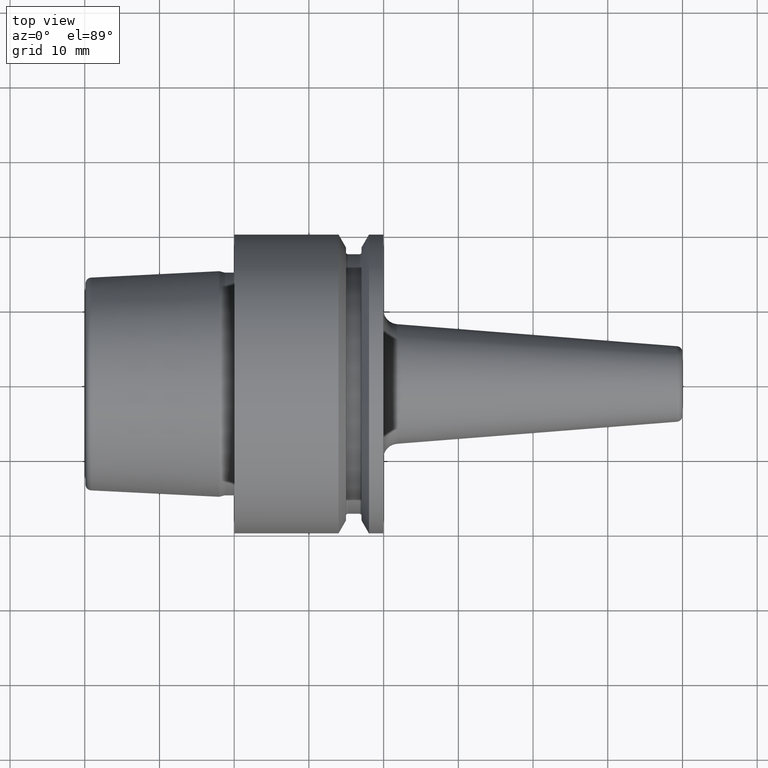
[diagram: clean part render]
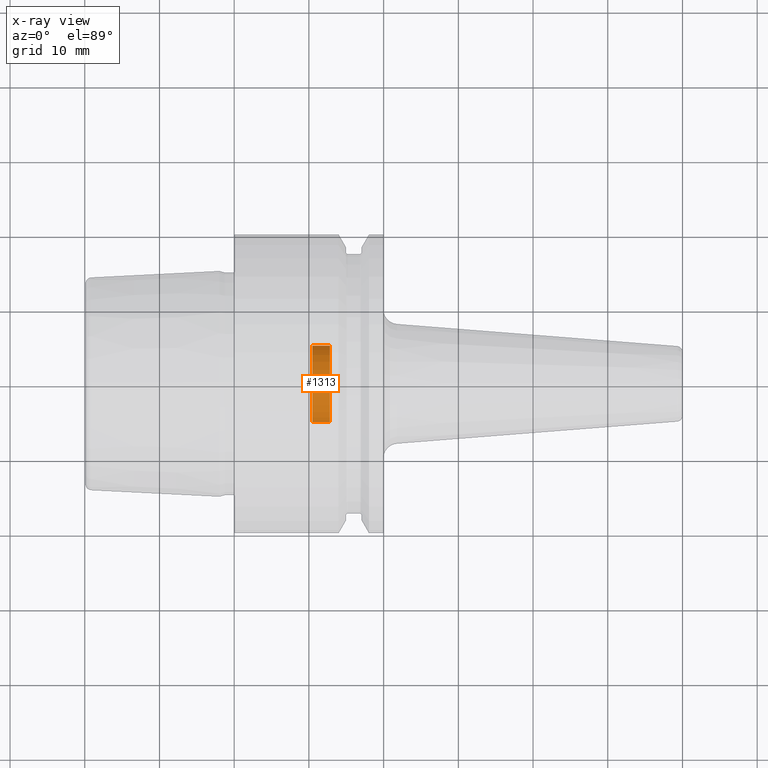
[diagram: x-ray — body ghosted, one internal face saturated and labeled with its STEP entity id]
A machine part, top view, then the same camera in x-ray: the body is ghosted and one INTERNAL B-rep face — a face not visible from any outside direction — is saturated and labeled: STEP entity #1313.
In plain terms, the highlighted cylindrical surface (partial cylindrical patch) has radius 5.1 mm, axis along (-1, 0, 0).
Its self-contained STEP definition (entity closure, byte-faithful):
#264=CARTESIAN_POINT('',(1.04625E1,0.E0,0.E0));
#265=DIRECTION('',(-1.E0,0.E0,0.E0));
#266=DIRECTION('',(0.E0,-1.E0,0.E0));
#267=AXIS2_PLACEMENT_3D('',#264,#265,#266);
#282=DIRECTION('',(-1.E0,0.E0,0.E0));
#283=VECTOR('',#282,2.3375E0);
#284=CARTESIAN_POINT('',(1.28E1,5.1E0,0.E0));
#285=LINE('',#284,#283);
#286=DIRECTION('',(-1.E0,0.E0,0.E0));
#287=VECTOR('',#286,2.3375E0);
#288=CARTESIAN_POINT('',(1.28E1,-5.1E0,0.E0));
#289=LINE('',#288,#287);
#300=CARTESIAN_POINT('',(1.28E1,0.E0,0.E0));
#301=DIRECTION('',(-1.E0,0.E0,0.E0));
#302=DIRECTION('',(0.E0,-1.E0,0.E0));
#303=AXIS2_PLACEMENT_3D('',#300,#301,#302);
#830=CARTESIAN_POINT('',(1.28E1,5.1E0,0.E0));
#831=CARTESIAN_POINT('',(1.04625E1,5.1E0,0.E0));
#832=VERTEX_POINT('',#830);
#833=VERTEX_POINT('',#831);
#834=CARTESIAN_POINT('',(1.28E1,-5.1E0,0.E0));
#835=CARTESIAN_POINT('',(1.04625E1,-5.1E0,0.E0));
#836=VERTEX_POINT('',#834);
#837=VERTEX_POINT('',#835);
#1299=CARTESIAN_POINT('',(1.851760861489E1,0.E0,0.E0));
#1300=DIRECTION('',(-1.E0,0.E0,0.E0));
#1301=DIRECTION('',(0.E0,1.E0,0.E0));
#1302=AXIS2_PLACEMENT_3D('',#1299,#1300,#1301);
#1303=CYLINDRICAL_SURFACE('',#1302,5.1E0);
#1305=ORIENTED_EDGE('',*,*,#1304,.T.);
#1306=ORIENTED_EDGE('',*,*,#1289,.F.);
#1308=ORIENTED_EDGE('',*,*,#1307,.F.);
#1310=ORIENTED_EDGE('',*,*,#1309,.T.);
#1311=EDGE_LOOP('',(#1305,#1306,#1308,#1310));
#1312=FACE_OUTER_BOUND('',#1311,.F.);
#1313=ADVANCED_FACE('',(#1312),#1303,.F.);
#268=CIRCLE('',#267,5.1E0);
#304=CIRCLE('',#303,5.1E0);
#1289=EDGE_CURVE('',#837,#833,#268,.T.);
#1304=EDGE_CURVE('',#832,#833,#285,.T.);
#1307=EDGE_CURVE('',#836,#837,#289,.T.);
#1309=EDGE_CURVE('',#836,#832,#304,.T.);